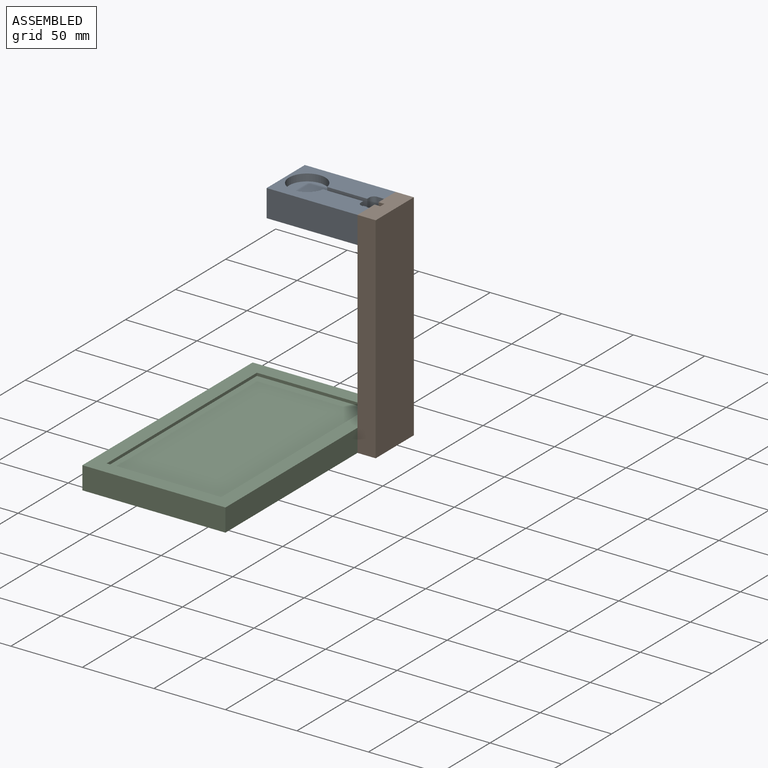
[diagram: assembled view]
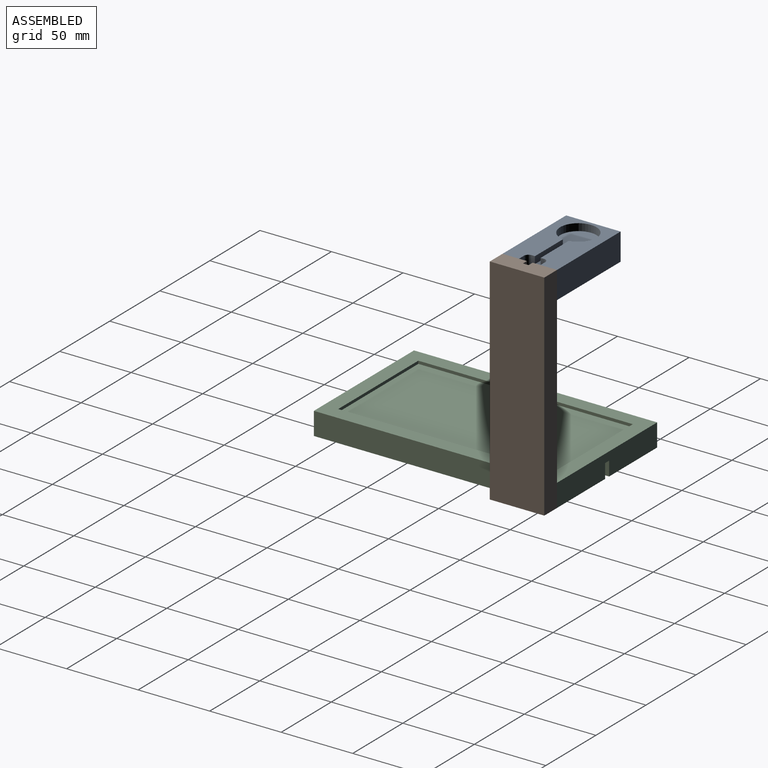
[diagram: assembled view, second angle]
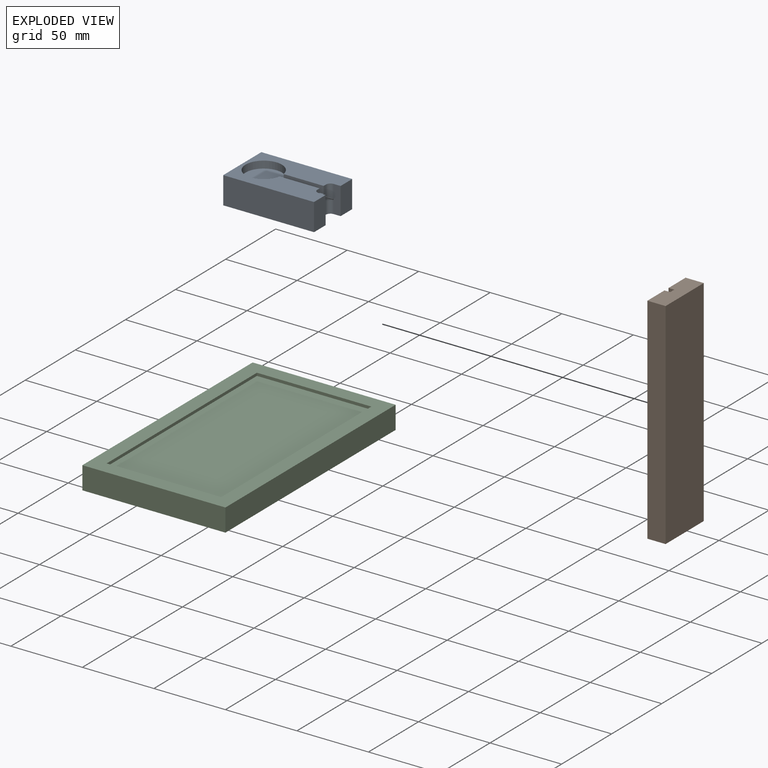
[diagram: exploded view]
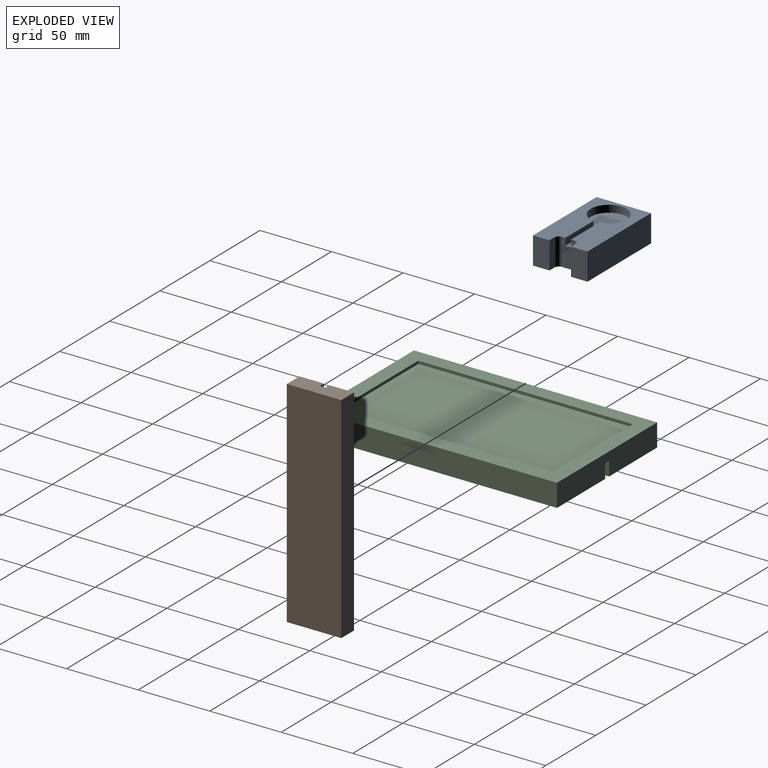
[diagram: exploded view, second angle]
ASSEMBLY  parts=3 mates=2
PART A: 16 faces, bbox 63.5x38.1x19.1 mm
  f0: plane 19.05x8.65mm, normal (1,0,0), area 144.8mm2, adj f1,f9,f10,f11,f13,f14,f15
  f1: cylinder r=3.17mm len=19.05mm, axis (0,0,1), area 95mm2, adj f0,f2,f10,f11
  f2: plane 19.05x4.83mm, normal (0,-1,0), area 91.9mm2, adj f1,f3,f10,f11
  f3: plane 19.05x11.55mm, normal (1,0,0), area 220mm2, adj f2,f4,f10,f11
  f4: plane 63.5x19.05mm, normal (0,1,0), area 1209.7mm2, adj f3,f5,f10,f11
  f5: plane 38.1x19.05mm, normal (-1,0,0), area 725.8mm2, adj f4,f6,f10,f11
  f6: plane 63.5x19.05mm, normal (0,-1,0), area 1209.7mm2, adj f5,f7,f10,f11
  f7: plane 19.05x11.55mm, normal (1,0,0), area 220mm2, adj f6,f8,f10,f11
  f8: plane 19.05x4.83mm, normal (0,1,0), area 91.9mm2, adj f7,f9,f10,f11
  f9: cylinder r=3.17mm len=19.05mm, axis (0,0,1), area 95mm2, adj f0,f8,f10,f11
  f10: plane 63.5x38.1mm, normal (0,0,-1), area 2303.7mm2, adj f0,f1,f2,f3,f4,f5,f6,f7
  f11: plane 63.5x38.1mm, normal (0,0,1), area 1685.6mm2, adj f0,f1,f2,f3,f4,f5,f6,f7
  f12: cylinder r=12.7mm len=25.4mm, axis (0,0,1), area 378.9mm2, adj f11,f13,f14,f15
  f13: plane 27.96x5mm, normal (0,1,0), area 139.8mm2, adj f0,f11,f12,f15
  f14: plane 27.96x5mm, normal (0,-1,0), area 139.8mm2, adj f0,f11,f12,f15
  f15: plane 53.2x25.4mm, normal (0,0,1), area 618.1mm2, adj f0,f12,f13,f14
PART B: 10 faces, bbox 12.7x38.1x150.4 mm
  f0: plane 150.4x17.05mm, normal (-1,0,0), area 2564.3mm2, adj f2,f3,f4,f7
  f1: plane 150.4x12.7mm, normal (0,1,0), area 1910.1mm2, adj f2,f4,f5,f6
  f2: plane 38.1x12.7mm, normal (0,0,1), area 467.9mm2, adj f0,f1,f3,f5,f6,f7,f8,f9
  f3: plane 150.4x12.7mm, normal (0,-1,0), area 1910.1mm2, adj f0,f2,f4,f5
  f4: plane 38.1x12.7mm, normal (0,0,-1), area 467.9mm2, adj f0,f1,f3,f5,f6,f7,f8,f9
  f5: plane 150.4x38.1mm, normal (1,0,0), area 5730.2mm2, adj f1,f2,f3,f4
  f6: plane 150.4x17.05mm, normal (-1,0,0), area 2564.3mm2, adj f1,f2,f4,f8
  f7: plane 150.4x4mm, normal (0,1,0), area 601.6mm2, adj f0,f2,f4,f9
  f8: plane 150.4x4mm, normal (0,-1,0), area 601.6mm2, adj f2,f4,f6,f9
  f9: plane 150.4x4mm, normal (-1,0,0), area 601.6mm2, adj f2,f4,f7,f8
PART C: 19 faces, bbox 100x170x15.9 mm
  f0: plane 170x100mm, normal (0,0,1), area 5000mm2, adj f1,f2,f3,f4,f14,f15,f16,f17
  f1: plane 170x15.88mm, normal (1,0,0), area 2698.8mm2, adj f0,f2,f4,f5
  f2: plane 100x15.88mm, normal (0,1,0), area 1547.5mm2, adj f0,f1,f3,f5,f6,f7,f13
  f3: plane 170x15.88mm, normal (-1,0,0), area 2698.8mm2, adj f0,f2,f4,f5
  f4: plane 100x15.88mm, normal (0,-1,0), area 1587.5mm2, adj f0,f1,f3,f5
  f5: plane 170x100mm, normal (0,0,-1), area 12201mm2, adj f1,f2,f3,f4,f6,f7,f8,f9
  f6: plane 24.17x10mm, normal (-1,0,0), area 241.7mm2, adj f2,f5,f12,f13
  f7: plane 24.17x10mm, normal (1,0,0), area 241.7mm2, adj f2,f5,f8,f13
  f8: cylinder r=6.35mm len=10mm, axis (0,0,-1), area 79.4mm2, adj f5,f7,f9,f13
  f9: plane 17.84x10mm, normal (1,0,0), area 178.4mm2, adj f5,f8,f10,f13
  f10: cylinder r=37.5mm len=75mm, axis (0,0,-1), area 2228.6mm2, adj f5,f9,f11,f13
  f11: plane 17.84x10mm, normal (-1,0,0), area 178.4mm2, adj f5,f10,f12,f13
  f12: cylinder r=6.35mm len=10mm, axis (0,0,-1), area 79.4mm2, adj f5,f6,f11,f13
  f13: plane 122.5x75mm, normal (0,0,-1), area 4799mm2, adj f2,f6,f7,f8,f9,f10,f11,f12
  f14: plane 80x2mm, normal (0,-1,0), area 160mm2, adj f0,f15,f17,f18
  f15: plane 150x2mm, normal (1,0,0), area 300mm2, adj f0,f14,f16,f18
  f16: plane 80x2mm, normal (0,1,0), area 160mm2, adj f0,f15,f17,f18
  f17: plane 150x2mm, normal (-1,0,0), area 300mm2, adj f0,f14,f16,f18
  f18: plane 150x80mm, normal (0,0,1), area 12000mm2, adj f14,f15,f16,f17
PLACE A t=(85.37,40.73,29.36)mm
PLACE B t=(85.37,40.73,29.36)mm
PLACE C t=(67.12,-25.22,-121.04)mm
MATE fastened C.f1 <-> B.f6  axis (1,0,0) through (117.12,59.78,-121.04)mm
MATE fastened A.f3 <-> B.f6  axis (1,0,0) through (117.12,59.78,29.36)mm
